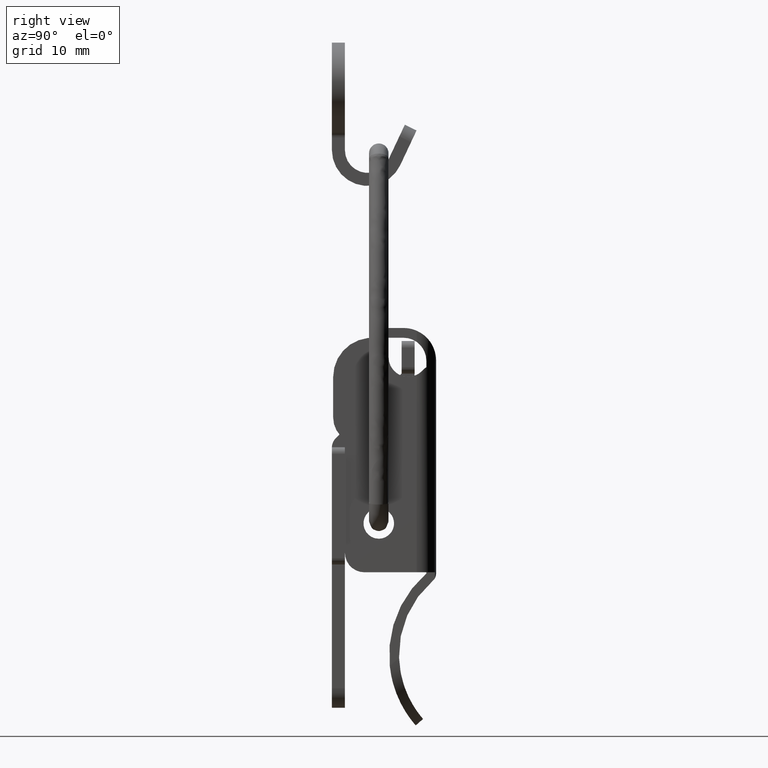
[diagram: clean part render]
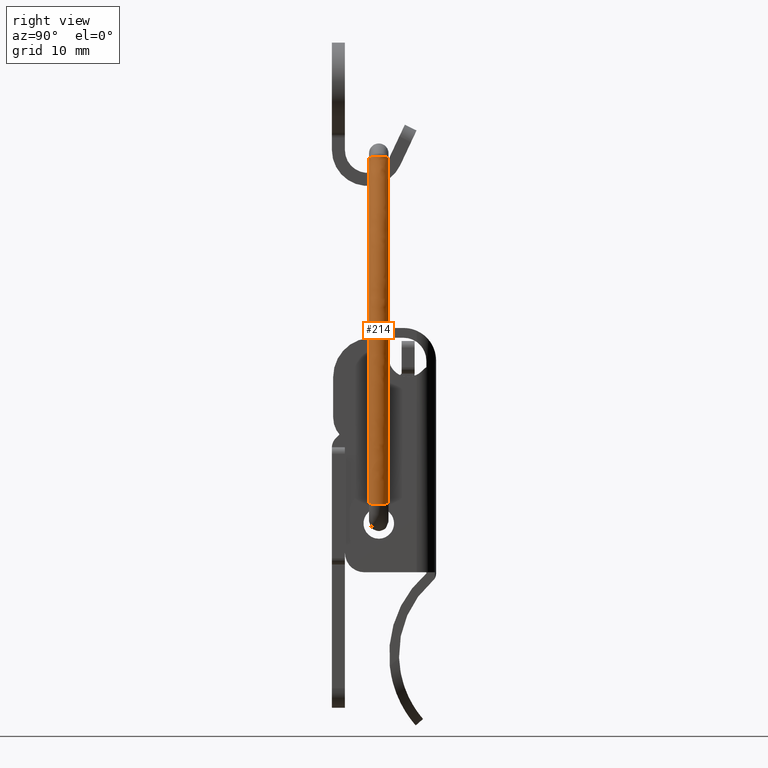
[diagram: same view with one face highlighted and labeled with its STEP entity id]
A machine part, right view. The second image highlights one B-rep face of the part: STEP entity #214.
In plain terms, the highlighted face is a freeform B-spline surface patch.
Its self-contained STEP definition (entity closure, byte-faithful):
#214=ADVANCED_FACE('',(#613),#612,.T.);
#612=( BOUNDED_SURFACE() B_SPLINE_SURFACE( 2,2,((#1976,#1977,#1978),(#1979,#1980,#1981),(#1982,#1983,#1984),(#1985,#1986,#1987),(#1988,#1989,#1990),(#1991,#1992,#1993),(#1994,#1995,#1996),(#1997,#1998,#1999),(#2000,#2001,#2002)), .UNSPECIFIED.,.T.,.F.,.F.) B_SPLINE_SURFACE_WITH_KNOTS((3,2,2,2,3),(3,3),(-3.14159265359E+00,-1.57079632679E+00,-4.44089209850E-16,1.57079632679E+00,3.14159265359E+00),(0.00000000000E+00,4.17609746504E-01), .UNSPECIFIED. ) GEOMETRIC_REPRESENTATION_ITEM() RATIONAL_B_SPLINE_SURFACE(((1.00000000000E+00,9.78279352193E-01,1.00000000000E+00),(7.07106781187E-01,6.91747963830E-01,7.07106781187E-01),(1.00000000000E+00,9.78279352193E-01,1.00000000000E+00),(7.07106781187E-01,6.91747963830E-01,7.07106781187E-01),(1.00000000000E+00,9.78279352193E-01,1.00000000000E+00),(7.07106781187E-01,6.91747963830E-01,7.07106781187E-01),(1.00000000000E+00,9.78279352193E-01,1.00000000000E+00),(7.07106781187E-01,6.91747963830E-01,7.07106781187E-01),(1.00000000000E+00,9.78279352193E-01,1.00000000000E+00))) REPRESENTATION_ITEM('') SURFACE() );
#613=FACE_OUTER_BOUND('',#2003,.T.);
#1976=CARTESIAN_POINT('',(1.26937827024E+01,1.50000000000E+00,-5.44198929163E+01));
#1977=CARTESIAN_POINT('',(1.81319249244E+01,1.50000000000E+00,-2.72377924920E+01));
#1978=CARTESIAN_POINT('',(1.20782898809E+01,1.50000000000E+00,-1.86110898002E-01));
#1979=CARTESIAN_POINT('',(1.26937827024E+01,-2.80235429588E-14,-5.44198929163E+01));
#1980=CARTESIAN_POINT('',(1.81319249244E+01,-2.80235429588E-14,-2.72377924920E+01));
#1981=CARTESIAN_POINT('',(1.20782898809E+01,-2.80195964038E-14,-1.86110898002E-01));
#1982=CARTESIAN_POINT('',(1.41646357926E+01,-2.81996648255E-14,-5.47141567211E+01));
#1983=CARTESIAN_POINT('',(1.96651305555E+01,-2.81996648255E-14,-2.72203923214E+01));
#1984=CARTESIAN_POINT('',(1.35420858661E+01,-2.81996648255E-14,1.41457894409E-01));
#1985=CARTESIAN_POINT('',(1.56354888829E+01,-2.79316974823E-14,-5.50084205259E+01));
#1986=CARTESIAN_POINT('',(2.11983361865E+01,-2.79316974823E-14,-2.72029921508E+01));
#1987=CARTESIAN_POINT('',(1.50058818513E+01,-2.79356440373E-14,4.69026686820E-01));
#1988=CARTESIAN_POINT('',(1.56354888829E+01,1.50000000000E+00,-5.50084205259E+01));
#1989=CARTESIAN_POINT('',(2.11983361865E+01,1.50000000000E+00,-2.72029921508E+01));
#1990=CARTESIAN_POINT('',(1.50058818513E+01,1.50000000000E+00,4.69026686820E-01));
#1991=CARTESIAN_POINT('',(1.56354888829E+01,3.00000000000E+00,-5.50084205259E+01));
#1992=CARTESIAN_POINT('',(2.11983361865E+01,3.00000000000E+00,-2.72029921508E+01));
#1993=CARTESIAN_POINT('',(1.50058818513E+01,3.00000000000E+00,4.69026686820E-01));
#1994=CARTESIAN_POINT('',(1.41646357926E+01,3.00000000000E+00,-5.47141567211E+01));
#1995=CARTESIAN_POINT('',(1.96651305555E+01,3.00000000000E+00,-2.72203923214E+01));
#1996=CARTESIAN_POINT('',(1.35420858661E+01,3.00000000000E+00,1.41457894409E-01));
#1997=CARTESIAN_POINT('',(1.26937827024E+01,3.00000000000E+00,-5.44198929163E+01));
#1998=CARTESIAN_POINT('',(1.81319249244E+01,3.00000000000E+00,-2.72377924920E+01));
#1999=CARTESIAN_POINT('',(1.20782898809E+01,3.00000000000E+00,-1.86110898002E-01));
#2000=CARTESIAN_POINT('',(1.26937827024E+01,1.50000000000E+00,-5.44198929163E+01));
#2001=CARTESIAN_POINT('',(1.81319249244E+01,1.50000000000E+00,-2.72377924920E+01));
#2002=CARTESIAN_POINT('',(1.20782898809E+01,1.50000000000E+00,-1.86110898002E-01));
#2003=EDGE_LOOP('',(#2896,#2897,#2898,#2899,#2900,#2901,#2902,#2903));
#2896=ORIENTED_EDGE('',*,*,#3608,.T.);
#2897=ORIENTED_EDGE('',*,*,#3609,.F.);
#2898=ORIENTED_EDGE('',*,*,#3610,.F.);
#2899=ORIENTED_EDGE('',*,*,#3611,.F.);
#2900=ORIENTED_EDGE('',*,*,#3612,.T.);
#2901=ORIENTED_EDGE('',*,*,#3613,.F.);
#2902=ORIENTED_EDGE('',*,*,#3614,.F.);
#2903=ORIENTED_EDGE('',*,*,#3615,.F.);
#3608=EDGE_CURVE('',#4490,#4491,#4492,.T.);
#3609=EDGE_CURVE('',#4498,#4491,#4499,.T.);
#3610=EDGE_CURVE('',#4505,#4498,#4506,.T.);
#3611=EDGE_CURVE('',#4512,#4505,#4513,.T.);
#3612=EDGE_CURVE('',#4512,#4519,#4520,.T.);
#3613=EDGE_CURVE('',#4526,#4519,#4527,.T.);
#3614=EDGE_CURVE('',#4533,#4526,#4534,.T.);
#3615=EDGE_CURVE('',#4490,#4533,#4540,.T.);
#4490=VERTEX_POINT('',#6882);
#4491=VERTEX_POINT('',#6883);
#4492=CIRCLE('',#6887,1.50000000000E+00);
#4498=VERTEX_POINT('',#6888);
#4499=CIRCLE('',#6892,1.32324072902E+02);
#4505=VERTEX_POINT('',#6893);
#4506=CIRCLE('',#6897,1.32324072902E+02);
#4512=VERTEX_POINT('',#6898);
#4513=CIRCLE('',#6902,1.32324072902E+02);
#4519=VERTEX_POINT('',#6903);
#4520=CIRCLE('',#6907,1.50000000000E+00);
#4526=VERTEX_POINT('',#6908);
#4527=CIRCLE('',#6912,1.32324072902E+02);
#4533=VERTEX_POINT('',#6913);
#4534=CIRCLE('',#6917,1.32324072902E+02);
#4540=CIRCLE('',#6921,1.32324072902E+02);
#6882=CARTESIAN_POINT('',(1.43735230856E+01,0.00000000000E+00,-5.36472871444E+01));
#6883=CARTESIAN_POINT('',(1.43735230856E+01,3.00000000000E+00,-5.36472871444E+01));
#6884=CARTESIAN_POINT('',(1.43735230856E+01,1.50000000000E+00,-5.36472871444E+01));
#6885=DIRECTION('',(1.88113318925E-01,0.00000000000E+00,9.82147330721E-01));
#6886=DIRECTION('',(-9.82147330721E-01,-0.00000000000E+00,1.88113318925E-01));
#6887=AXIS2_PLACEMENT_3D('',#6884,#6885,#6886);
#6888=CARTESIAN_POINT('',(1.43913555420E+01,3.00000000000E+00,-5.35540019750E+01));
#6889=CARTESIAN_POINT('',(-1.15588211905E+02,3.00000000000E+00,-2.87553666171E+01));
#6890=DIRECTION('',(-0.00000000000E+00,1.00000000000E+00,0.00000000000E+00));
#6891=DIRECTION('',(-0.00000000000E+00,-0.00000000000E+00,-1.00000000000E+00));
#6892=AXIS2_PLACEMENT_3D('',#6889,#6890,#6891);
#6893=CARTESIAN_POINT('',(1.38910221067E+01,3.00000000000E+00,-1.46455810874E+00));
#6894=CARTESIAN_POINT('',(-1.15588211905E+02,3.00000000000E+00,-2.87553666171E+01));
#6895=DIRECTION('',(-0.00000000000E+00,1.00000000000E+00,0.00000000000E+00));
#6896=DIRECTION('',(-0.00000000000E+00,-0.00000000000E+00,-1.00000000000E+00));
#6897=AXIS2_PLACEMENT_3D('',#6894,#6895,#6896);
#6898=CARTESIAN_POINT('',(1.37446600425E+01,3.00000000000E+00,-7.79153451115E-01));
#6899=CARTESIAN_POINT('',(-1.15588211905E+02,3.00000000000E+00,-2.87553666171E+01));
#6900=DIRECTION('',(-0.00000000000E+00,1.00000000000E+00,0.00000000000E+00));
#6901=DIRECTION('',(-0.00000000000E+00,-0.00000000000E+00,-1.00000000000E+00));
#6902=AXIS2_PLACEMENT_3D('',#6899,#6900,#6901);
#6903=CARTESIAN_POINT('',(1.37446600425E+01,0.00000000000E+00,-7.79153451117E-01));
#6904=CARTESIAN_POINT('',(1.37446600425E+01,1.50000000000E+00,-7.79153451115E-01));
#6905=DIRECTION('',(2.11421947289E-01,1.23259516441E-32,-9.77394884478E-01));
#6906=DIRECTION('',(-1.79538597859E-16,1.00000000000E+00,-3.88362989981E-17));
#6907=AXIS2_PLACEMENT_3D('',#6904,#6905,#6906);
#6908=CARTESIAN_POINT('',(1.38910221068E+01,0.00000000000E+00,-1.46455810874E+00));
#6909=CARTESIAN_POINT('',(-1.15588211905E+02,0.00000000000E+00,-2.87553666171E+01));
#6910=DIRECTION('',(0.00000000000E+00,-1.00000000000E+00,0.00000000000E+00));
#6911=DIRECTION('',(-0.00000000000E+00,-0.00000000000E+00,-1.00000000000E+00));
#6912=AXIS2_PLACEMENT_3D('',#6909,#6910,#6911);
#6913=CARTESIAN_POINT('',(1.43913555420E+01,0.00000000000E+00,-5.35540019750E+01));
#6914=CARTESIAN_POINT('',(-1.15588211905E+02,0.00000000000E+00,-2.87553666171E+01));
#6915=DIRECTION('',(0.00000000000E+00,-1.00000000000E+00,0.00000000000E+00));
#6916=DIRECTION('',(-0.00000000000E+00,-0.00000000000E+00,-1.00000000000E+00));
#6917=AXIS2_PLACEMENT_3D('',#6914,#6915,#6916);
#6918=CARTESIAN_POINT('',(-1.15588211905E+02,0.00000000000E+00,-2.87553666171E+01));
#6919=DIRECTION('',(0.00000000000E+00,-1.00000000000E+00,0.00000000000E+00));
#6920=DIRECTION('',(-0.00000000000E+00,-0.00000000000E+00,-1.00000000000E+00));
#6921=AXIS2_PLACEMENT_3D('',#6918,#6919,#6920);